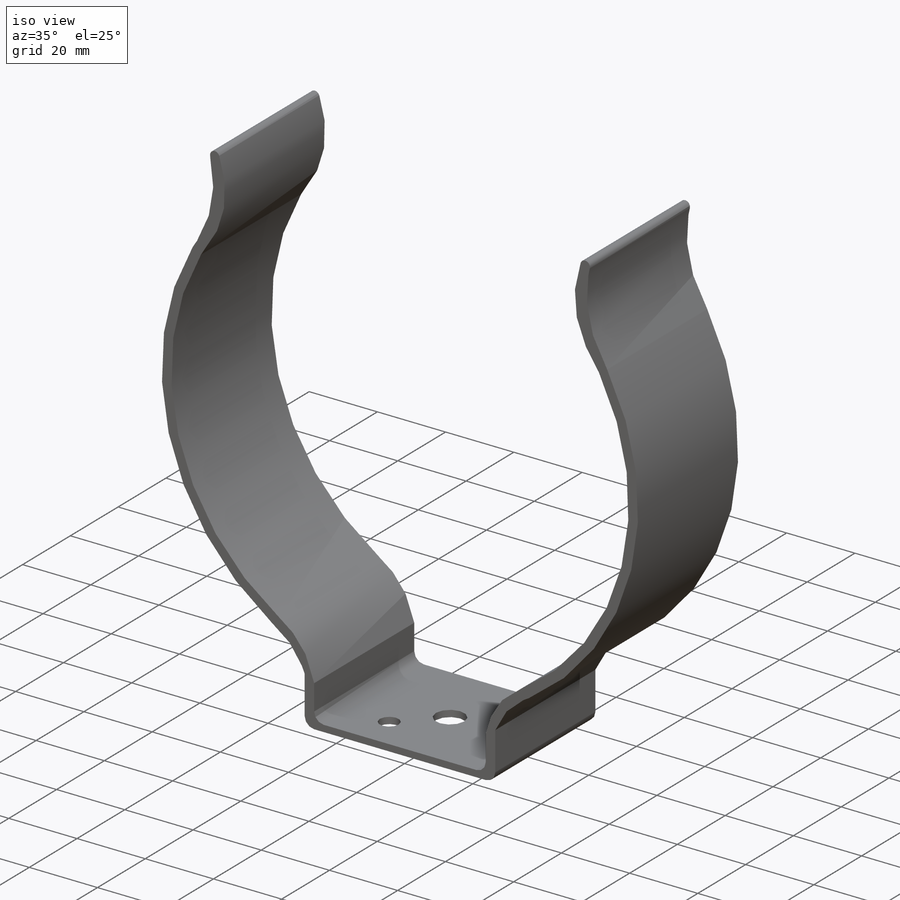
[diagram: iso view]
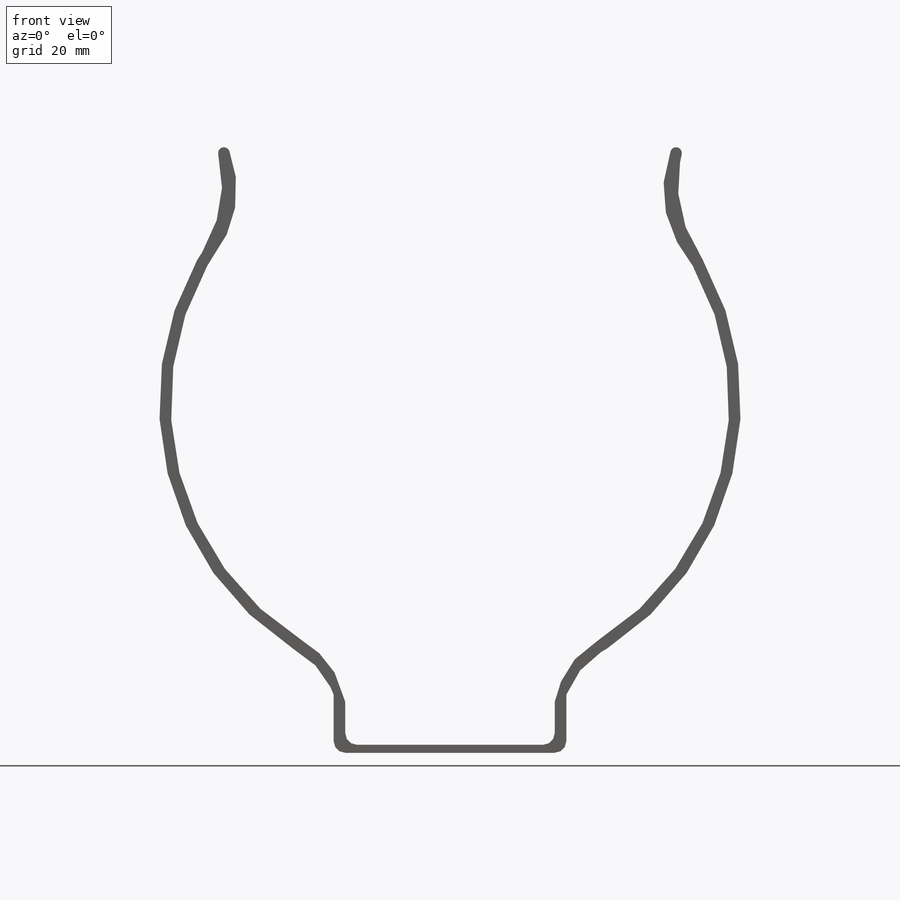
[diagram: front view]
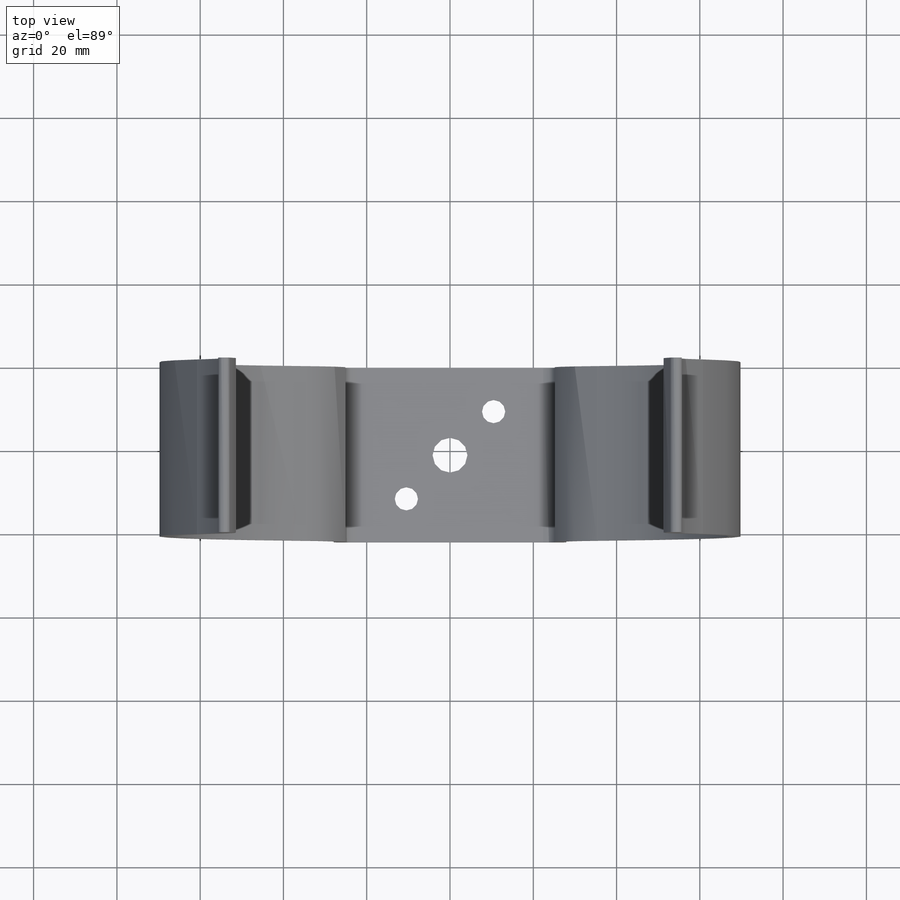
[diagram: top view]
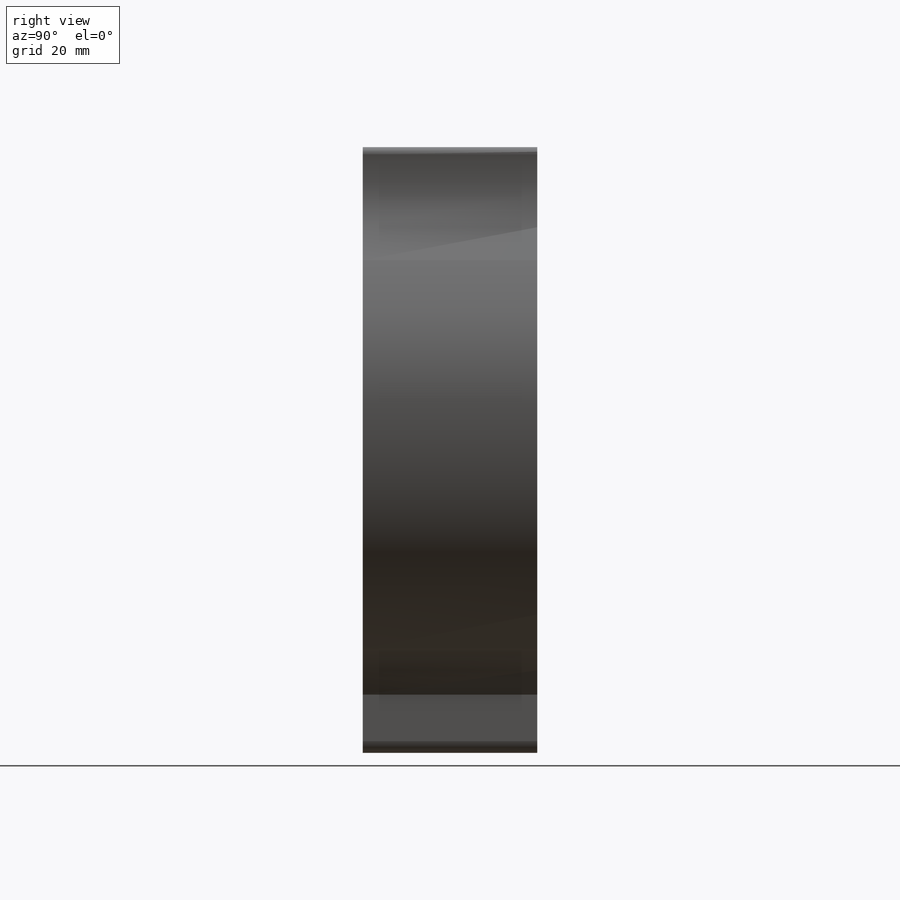
[diagram: right view]
SOLIDWORKS PART (.sldprt)
format: sldprt  version: not decoded by parser v0  size: 274,944 bytes
history: native  units: mm
features: sketch x2, fillet x2, material x1, extrude x1, cut_extrude x1 (+13 scaffold rows collapsed)
feature tree (20):
  scaffold x13  (default folders/planes/origin — collapsed)
  material  "Material <not specified>"
  sketch  "Sketch1"  dims[c1.D1=127.0mm c1.D4=121.92mm c1.D5=127.0mm c1.D2=2.54mm c1.D3=2.54mm c2.D5=12.7mm c2.D6=50.8mm c2.D7=45.72mm c2.D8=2.54mm]
  extrude  "Boss-Extrude1"  Depth=38.1mm
  sketch  "Sketch2"  dims[c1.D4=5.08mm c1.D5=~4.085221mm c2.D5=5.08mm c2.D4=7.62mm c2.D1=19.05mm c2.D2=19.05mm c2.D3=9.525mm]
  cut_extrude  "Cut-Extrude1"  Depth=2.54mm
  fillet  "Fillet1"  Radius=1.27mm
  fillet  "Fillet2"  Radius=2.54mm
decode coverage: 6 of 6 modeling features carry decoded parameters
note: ~ marks probable driven/reference dimensions
note: suppression state not decoded; provenance and decode notes live in map.json
